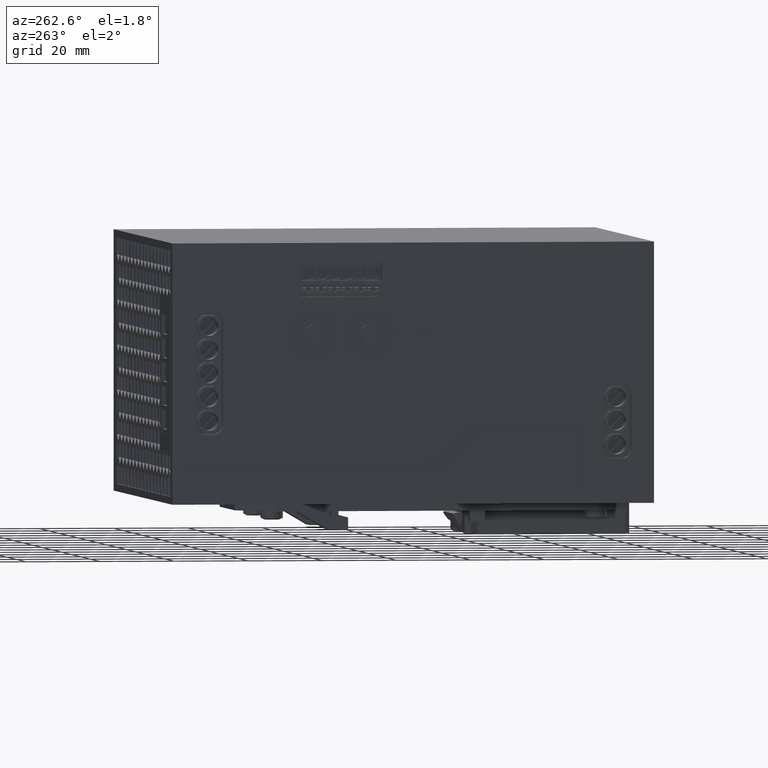
[diagram: clean part render]
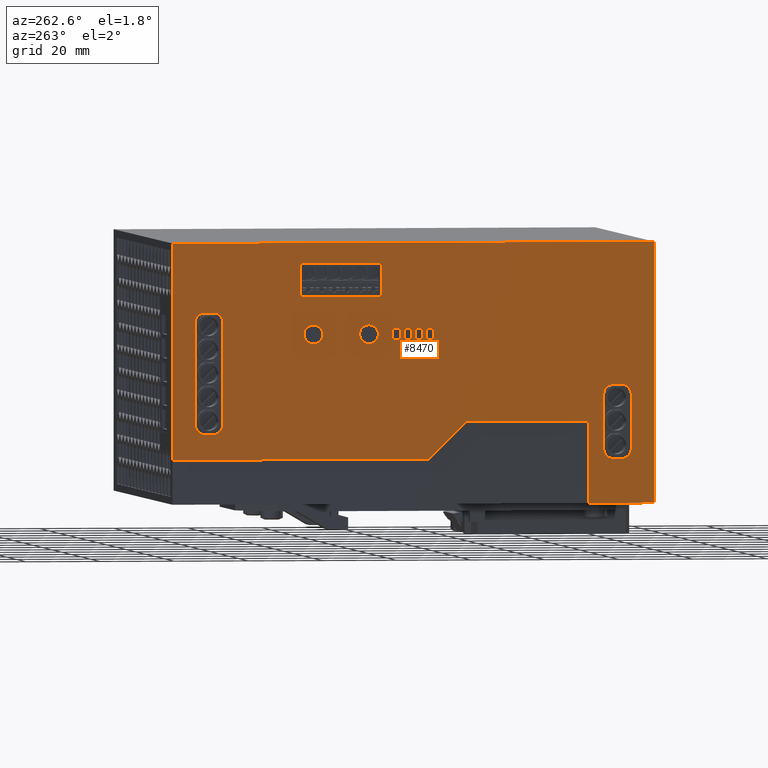
[diagram: same view with one face highlighted and labeled with its STEP entity id]
A machine part, auxiliary view. The second image highlights one B-rep face of the part: STEP entity #8470.
In plain terms, the highlighted planar face has unit normal (-1, 0, 0).
Its self-contained STEP definition (entity closure, byte-faithful):
#100=CARTESIAN_POINT('',(21.9249998753199,122.349999999992,
78.4587186950105));
#110=VERTEX_POINT('',#100);
#280=CARTESIAN_POINT('',(11.9335354708757,122.349999999992,
68.4672542905663));
#290=VERTEX_POINT('',#280);
#320=CARTESIAN_POINT('',(-56.5337188196906,122.349999999992,0.));
#330=DIRECTION('',(0.707106781186547,0.,0.707106781186548));
#340=VECTOR('',#330,1.);
#350=LINE('',#320,#340);
#360=EDGE_CURVE('',#290,#110,#350,.T.);
#1040=CARTESIAN_POINT('',(21.9249998753199,122.349999999992,
111.546849890801));
#1050=VERTEX_POINT('',#1040);
#1170=CARTESIAN_POINT('',(21.9249998753199,122.349999999992,0.));
#1180=DIRECTION('',(0.,0.,1.));
#1190=VECTOR('',#1180,1.);
#1200=LINE('',#1170,#1190);
#1210=EDGE_CURVE('',#110,#1050,#1200,.T.);
#1470=CARTESIAN_POINT('',(0.,122.349999999992,111.546849890801));
#1480=DIRECTION('',(-1.,0.,0.));
#1490=VECTOR('',#1480,1.);
#1500=LINE('',#1470,#1490);
#1510=CARTESIAN_POINT('',(0.,122.349999999992,111.546849890801));
#1520=VERTEX_POINT('',#1510);
#1530=EDGE_CURVE('',#1050,#1520,#1500,.T.);
#1800=CARTESIAN_POINT('',(44.,122.349999999992,60.6468498908015));
#1810=VERTEX_POINT('',#1800);
#1980=CARTESIAN_POINT('',(47.,122.349999999992,60.6468498908015));
#1990=VERTEX_POINT('',#1980);
#2020=CARTESIAN_POINT('',(0.,122.349999999992,60.6468498908015));
#2030=DIRECTION('',(1.,0.,0.));
#2040=VECTOR('',#2030,1.);
#2050=LINE('',#2020,#2040);
#2060=EDGE_CURVE('',#1810,#1990,#2050,.T.);
#2350=CARTESIAN_POINT('',(11.9335354708757,122.349999999992,
-0.853150109198594));
#2360=VERTEX_POINT('',#2350);
#2390=CARTESIAN_POINT('',(11.9335354708757,122.349999999992,0.));
#2400=DIRECTION('',(0.,0.,-1.));
#2410=VECTOR('',#2400,1.);
#2420=LINE('',#2390,#2410);
#2430=EDGE_CURVE('',#290,#2360,#2420,.T.);
#3120=CARTESIAN_POINT('',(47.,122.349999999992,64.6468498908015));
#3130=VERTEX_POINT('',#3120);
#3300=CARTESIAN_POINT('',(44.,122.349999999992,64.6468498908015));
#3310=VERTEX_POINT('',#3300);
#3340=CARTESIAN_POINT('',(0.,122.349999999992,64.6468498908015));
#3350=DIRECTION('',(-1.,0.,0.));
#3360=VECTOR('',#3350,1.);
#3370=LINE('',#3340,#3360);
#3380=EDGE_CURVE('',#3130,#3310,#3370,.T.);
#4840=CARTESIAN_POINT('',(-1.75315,122.349999999992,132.399999890801));
#4850=DIRECTION('',(-0.,1.,0.));
#4860=DIRECTION('',(1.,0.,0.));
#4870=AXIS2_PLACEMENT_3D('',#4840,#4850,#4860);
#4880=PLANE('',#4870);
#4890=CARTESIAN_POINT('',(70.,122.349999999992,0.));
#4900=DIRECTION('',(0.,0.,-1.));
#4910=VECTOR('',#4900,1.);
#4920=LINE('',#4890,#4910);
#4930=CARTESIAN_POINT('',(70.,122.349999999992,129.146849890801));
#4940=VERTEX_POINT('',#4930);
#4950=CARTESIAN_POINT('',(70.,122.349999999992,-0.853150109198594));
#4960=VERTEX_POINT('',#4950);
#4970=EDGE_CURVE('',#4940,#4960,#4920,.T.);
#4980=ORIENTED_EDGE('',*,*,#4970,.T.);
#4990=CARTESIAN_POINT('',(0.,122.349999999992,129.146849890801));
#5000=DIRECTION('',(-1.,0.,0.));
#5010=VECTOR('',#5000,1.);
#5020=LINE('',#4990,#5010);
#5030=CARTESIAN_POINT('',(0.,122.349999999992,129.146849890801));
#5040=VERTEX_POINT('',#5030);
#5050=EDGE_CURVE('',#4940,#5040,#5020,.T.);
#5060=ORIENTED_EDGE('',*,*,#5050,.F.);
#5070=CARTESIAN_POINT('',(0.,122.349999999992,0.));
#5080=DIRECTION('',(0.,0.,-1.));
#5090=VECTOR('',#5080,1.);
#5100=LINE('',#5070,#5090);
#5110=EDGE_CURVE('',#5040,#1520,#5100,.T.);
#5120=ORIENTED_EDGE('',*,*,#5110,.F.);
#5130=ORIENTED_EDGE('',*,*,#1530,.T.);
#5140=ORIENTED_EDGE('',*,*,#1210,.T.);
#5150=ORIENTED_EDGE('',*,*,#360,.T.);
#5160=ORIENTED_EDGE('',*,*,#2430,.F.);
#5170=CARTESIAN_POINT('',(0.,122.349999999992,-0.853150109198594));
#5180=DIRECTION('',(-1.,0.,0.));
#5190=VECTOR('',#5180,1.);
#5200=LINE('',#5170,#5190);
#5210=EDGE_CURVE('',#4960,#2360,#5200,.T.);
#5220=ORIENTED_EDGE('',*,*,#5210,.T.);
#5230=EDGE_LOOP('',(#5220,#5160,#5150,#5140,#5130,#5120,#5060,#4980));
#5240=FACE_OUTER_BOUND('',#5230,.T.);
#5250=CARTESIAN_POINT('',(64.56,122.349999999992,0.));
#5260=DIRECTION('',(0.,0.,-1.));
#5270=VECTOR('',#5260,1.);
#5280=LINE('',#5250,#5270);
#5290=CARTESIAN_POINT('',(64.56,122.349999999992,55.6468498908014));
#5300=VERTEX_POINT('',#5290);
#5310=CARTESIAN_POINT('',(64.56,122.349999999992,33.6468498908014));
#5320=VERTEX_POINT('',#5310);
#5330=EDGE_CURVE('',#5300,#5320,#5280,.T.);
#5340=ORIENTED_EDGE('',*,*,#5330,.F.);
#5350=CARTESIAN_POINT('',(0.,122.349999999992,33.6468498908014));
#5360=DIRECTION('',(-1.,0.,0.));
#5370=VECTOR('',#5360,1.);
#5380=LINE('',#5350,#5370);
#5390=CARTESIAN_POINT('',(55.56,122.349999999992,33.6468498908014));
#5400=VERTEX_POINT('',#5390);
#5410=EDGE_CURVE('',#5320,#5400,#5380,.T.);
#5420=ORIENTED_EDGE('',*,*,#5410,.F.);
#5430=CARTESIAN_POINT('',(55.56,122.349999999992,0.));
#5440=DIRECTION('',(0.,0.,1.));
#5450=VECTOR('',#5440,1.);
#5460=LINE('',#5430,#5450);
#5470=CARTESIAN_POINT('',(55.56,122.349999999992,55.6468498908014));
#5480=VERTEX_POINT('',#5470);
#5490=EDGE_CURVE('',#5400,#5480,#5460,.T.);
#5500=ORIENTED_EDGE('',*,*,#5490,.F.);
#5510=CARTESIAN_POINT('',(0.,122.349999999992,55.6468498908014));
#5520=DIRECTION('',(1.,0.,0.));
#5530=VECTOR('',#5520,1.);
#5540=LINE('',#5510,#5530);
#5550=EDGE_CURVE('',#5480,#5300,#5540,.T.);
#5560=ORIENTED_EDGE('',*,*,#5550,.F.);
#5570=EDGE_LOOP('',(#5560,#5500,#5420,#5340));
#5580=FACE_BOUND('',#5570,.T.);
#5590=CARTESIAN_POINT('',(21.2914645291246,122.349999999992,
7.80038500000003));
#5600=DIRECTION('',(0.,1.,0.));
#5610=DIRECTION('',(-1.,0.,0.));
#5620=AXIS2_PLACEMENT_3D('',#5590,#5600,#5610);
#5630=CIRCLE('',#5620,2.50000000000003);
#5640=CARTESIAN_POINT('',(21.2914645291246,122.349999999992,
5.30038500000001));
#5650=VERTEX_POINT('',#5640);
#5660=CARTESIAN_POINT('',(18.7914645291246,122.349999999992,7.800385));
#5670=VERTEX_POINT('',#5660);
#5680=EDGE_CURVE('',#5650,#5670,#5630,.T.);
#5690=ORIENTED_EDGE('',*,*,#5680,.F.);
#5700=CARTESIAN_POINT('',(18.7914645291246,122.349999999992,0.));
#5710=DIRECTION('',(0.,0.,1.));
#5720=VECTOR('',#5710,1.);
#5730=LINE('',#5700,#5720);
#5740=CARTESIAN_POINT('',(18.7914645291246,122.349999999992,10.200385));
#5750=VERTEX_POINT('',#5740);
#5760=EDGE_CURVE('',#5670,#5750,#5730,.T.);
#5770=ORIENTED_EDGE('',*,*,#5760,.F.);
#5780=CARTESIAN_POINT('',(21.2914645291247,122.349999999992,10.200385));
#5790=DIRECTION('',(0.,1.,0.));
#5800=DIRECTION('',(-1.,0.,0.));
#5810=AXIS2_PLACEMENT_3D('',#5780,#5790,#5800);
#5820=CIRCLE('',#5810,2.50000000000012);
#5830=CARTESIAN_POINT('',(21.2914645291246,122.349999999992,
12.7003850000001));
#5840=VERTEX_POINT('',#5830);
#5850=EDGE_CURVE('',#5750,#5840,#5820,.T.);
#5860=ORIENTED_EDGE('',*,*,#5850,.F.);
#5870=CARTESIAN_POINT('',(0.,122.349999999992,12.700385));
#5880=DIRECTION('',(1.,0.,0.));
#5890=VECTOR('',#5880,1.);
#5900=LINE('',#5870,#5890);
#5910=CARTESIAN_POINT('',(48.8414645291243,122.349999999992,12.700385));
#5920=VERTEX_POINT('',#5910);
#5930=EDGE_CURVE('',#5840,#5920,#5900,.T.);
#5940=ORIENTED_EDGE('',*,*,#5930,.F.);
#5950=CARTESIAN_POINT('',(48.8414645291243,122.349999999992,10.200385));
#5960=DIRECTION('',(0.,-1.,0.));
#5970=DIRECTION('',(1.,0.,0.));
#5980=AXIS2_PLACEMENT_3D('',#5950,#5960,#5970);
#5990=CIRCLE('',#5980,2.50000000000005);
#6000=CARTESIAN_POINT('',(51.3414645291243,122.349999999992,10.200385));
#6010=VERTEX_POINT('',#6000);
#6020=EDGE_CURVE('',#6010,#5920,#5990,.T.);
#6030=ORIENTED_EDGE('',*,*,#6020,.T.);
#6040=CARTESIAN_POINT('',(51.3414645291243,122.349999999992,0.));
#6050=DIRECTION('',(0.,0.,-1.));
#6060=VECTOR('',#6050,1.);
#6070=LINE('',#6040,#6060);
#6080=CARTESIAN_POINT('',(51.3414645291243,122.349999999992,
7.80038500000001));
#6090=VERTEX_POINT('',#6080);
#6100=EDGE_CURVE('',#6010,#6090,#6070,.T.);
#6110=ORIENTED_EDGE('',*,*,#6100,.F.);
#6120=CARTESIAN_POINT('',(48.8414645291243,122.349999999992,
7.80038499999996));
#6130=DIRECTION('',(0.,1.,0.));
#6140=DIRECTION('',(-1.,0.,0.));
#6150=AXIS2_PLACEMENT_3D('',#6120,#6130,#6140);
#6160=CIRCLE('',#6150,2.50000000000003);
#6170=CARTESIAN_POINT('',(48.8414645291243,122.349999999992,
5.30038500000001));
#6180=VERTEX_POINT('',#6170);
#6190=EDGE_CURVE('',#6090,#6180,#6160,.T.);
#6200=ORIENTED_EDGE('',*,*,#6190,.F.);
#6210=CARTESIAN_POINT('',(0.,122.349999999992,5.30038500000001));
#6220=DIRECTION('',(-1.,0.,0.));
#6230=VECTOR('',#6220,1.);
#6240=LINE('',#6210,#6230);
#6250=EDGE_CURVE('',#6180,#5650,#6240,.T.);
#6260=ORIENTED_EDGE('',*,*,#6250,.F.);
#6270=EDGE_LOOP('',(#6260,#6200,#6110,#6030,#5940,#5860,#5770,#5690));
#6280=FACE_BOUND('',#6270,.T.);
#6290=CARTESIAN_POINT('',(45.5,122.349999999992,52.1468498908015));
#6300=DIRECTION('',(0.,-1.,0.));
#6310=DIRECTION('',(1.,0.,0.));
#6320=AXIS2_PLACEMENT_3D('',#6290,#6300,#6310);
#6330=CIRCLE('',#6320,2.49999999999999);
#6340=CARTESIAN_POINT('',(43.,122.349999999992,52.1468498908015));
#6350=VERTEX_POINT('',#6340);
#6360=CARTESIAN_POINT('',(48.,122.349999999992,52.1468498908015));
#6370=VERTEX_POINT('',#6360);
#6380=EDGE_CURVE('',#6350,#6370,#6330,.T.);
#6390=ORIENTED_EDGE('',*,*,#6380,.T.);
#6400=EDGE_CURVE('',#6370,#6350,#6330,.T.);
#6410=ORIENTED_EDGE('',*,*,#6400,.T.);
#6420=EDGE_LOOP('',(#6410,#6390));
#6430=FACE_BOUND('',#6420,.T.);
#6440=ORIENTED_EDGE('',*,*,#2060,.F.);
#6450=CARTESIAN_POINT('',(47.,122.349999999992,0.));
#6460=DIRECTION('',(0.,0.,-1.));
#6470=VECTOR('',#6460,1.);
#6480=LINE('',#6450,#6470);
#6490=CARTESIAN_POINT('',(47.,122.349999999992,58.6468498908015));
#6500=VERTEX_POINT('',#6490);
#6510=EDGE_CURVE('',#1990,#6500,#6480,.T.);
#6520=ORIENTED_EDGE('',*,*,#6510,.F.);
#6530=CARTESIAN_POINT('',(0.,122.349999999992,58.6468498908015));
#6540=DIRECTION('',(-1.,0.,0.));
#6550=VECTOR('',#6540,1.);
#6560=LINE('',#6530,#6550);
#6570=CARTESIAN_POINT('',(44.,122.349999999992,58.6468498908015));
#6580=VERTEX_POINT('',#6570);
#6590=EDGE_CURVE('',#6500,#6580,#6560,.T.);
#6600=ORIENTED_EDGE('',*,*,#6590,.F.);
#6610=CARTESIAN_POINT('',(44.,122.349999999992,0.));
#6620=DIRECTION('',(0.,0.,1.));
#6630=VECTOR('',#6620,1.);
#6640=LINE('',#6610,#6630);
#6650=EDGE_CURVE('',#6580,#1810,#6640,.T.);
#6660=ORIENTED_EDGE('',*,*,#6650,.F.);
#6670=EDGE_LOOP('',(#6660,#6600,#6520,#6440));
#6680=FACE_BOUND('',#6670,.T.);
#6690=CARTESIAN_POINT('',(0.,122.349999999992,63.6468498908015));
#6700=DIRECTION('',(1.,0.,0.));
#6710=VECTOR('',#6700,1.);
#6720=LINE('',#6690,#6710);
#6730=CARTESIAN_POINT('',(44.,122.349999999992,63.6468498908015));
#6740=VERTEX_POINT('',#6730);
#6750=CARTESIAN_POINT('',(47.,122.349999999992,63.6468498908015));
#6760=VERTEX_POINT('',#6750);
#6770=EDGE_CURVE('',#6740,#6760,#6720,.T.);
#6780=ORIENTED_EDGE('',*,*,#6770,.F.);
#6790=CARTESIAN_POINT('',(47.,122.349999999992,0.));
#6800=DIRECTION('',(0.,0.,-1.));
#6810=VECTOR('',#6800,1.);
#6820=LINE('',#6790,#6810);
#6830=CARTESIAN_POINT('',(47.,122.349999999992,61.6468498908015));
#6840=VERTEX_POINT('',#6830);
#6850=EDGE_CURVE('',#6760,#6840,#6820,.T.);
#6860=ORIENTED_EDGE('',*,*,#6850,.F.);
#6870=CARTESIAN_POINT('',(0.,122.349999999992,61.6468498908015));
#6880=DIRECTION('',(-1.,0.,0.));
#6890=VECTOR('',#6880,1.);
#6900=LINE('',#6870,#6890);
#6910=CARTESIAN_POINT('',(44.,122.349999999992,61.6468498908015));
#6920=VERTEX_POINT('',#6910);
#6930=EDGE_CURVE('',#6840,#6920,#6900,.T.);
#6940=ORIENTED_EDGE('',*,*,#6930,.F.);
#6950=CARTESIAN_POINT('',(44.,122.349999999992,0.));
#6960=DIRECTION('',(0.,0.,1.));
#6970=VECTOR('',#6960,1.);
#6980=LINE('',#6950,#6970);
#6990=EDGE_CURVE('',#6920,#6740,#6980,.T.);
#7000=ORIENTED_EDGE('',*,*,#6990,.F.);
#7010=EDGE_LOOP('',(#7000,#6940,#6860,#6780));
#7020=FACE_BOUND('',#7010,.T.);
#7030=CARTESIAN_POINT('',(45.5,122.349999999992,37.1468498908015));
#7040=DIRECTION('',(0.,-1.,0.));
#7050=DIRECTION('',(1.,0.,0.));
#7060=AXIS2_PLACEMENT_3D('',#7030,#7040,#7050);
#7070=CIRCLE('',#7060,2.49999999999999);
#7080=CARTESIAN_POINT('',(48.,122.349999999992,37.1468498908015));
#7090=VERTEX_POINT('',#7080);
#7100=CARTESIAN_POINT('',(43.,122.349999999992,37.1468498908015));
#7110=VERTEX_POINT('',#7100);
#7120=EDGE_CURVE('',#7090,#7110,#7070,.T.);
#7130=ORIENTED_EDGE('',*,*,#7120,.T.);
#7140=EDGE_CURVE('',#7110,#7090,#7070,.T.);
#7150=ORIENTED_EDGE('',*,*,#7140,.T.);
#7160=EDGE_LOOP('',(#7150,#7130));
#7170=FACE_BOUND('',#7160,.T.);
#7180=CARTESIAN_POINT('',(47.,122.349999999992,0.));
#7190=DIRECTION('',(0.,0.,-1.));
#7200=VECTOR('',#7190,1.);
#7210=LINE('',#7180,#7200);
#7220=CARTESIAN_POINT('',(47.,122.349999999992,69.6468498908015));
#7230=VERTEX_POINT('',#7220);
#7240=CARTESIAN_POINT('',(47.,122.349999999992,67.6468498908015));
#7250=VERTEX_POINT('',#7240);
#7260=EDGE_CURVE('',#7230,#7250,#7210,.T.);
#7270=ORIENTED_EDGE('',*,*,#7260,.F.);
#7280=CARTESIAN_POINT('',(0.,122.349999999992,67.6468498908015));
#7290=DIRECTION('',(-1.,0.,0.));
#7300=VECTOR('',#7290,1.);
#7310=LINE('',#7280,#7300);
#7320=CARTESIAN_POINT('',(44.,122.349999999992,67.6468498908015));
#7330=VERTEX_POINT('',#7320);
#7340=EDGE_CURVE('',#7250,#7330,#7310,.T.);
#7350=ORIENTED_EDGE('',*,*,#7340,.F.);
#7360=CARTESIAN_POINT('',(44.,122.349999999992,0.));
#7370=DIRECTION('',(0.,0.,1.));
#7380=VECTOR('',#7370,1.);
#7390=LINE('',#7360,#7380);
#7400=CARTESIAN_POINT('',(44.,122.349999999992,69.6468498908015));
#7410=VERTEX_POINT('',#7400);
#7420=EDGE_CURVE('',#7330,#7410,#7390,.T.);
#7430=ORIENTED_EDGE('',*,*,#7420,.F.);
#7440=CARTESIAN_POINT('',(0.,122.349999999992,69.6468498908015));
#7450=DIRECTION('',(1.,0.,0.));
#7460=VECTOR('',#7450,1.);
#7470=LINE('',#7440,#7460);
#7480=EDGE_CURVE('',#7410,#7230,#7470,.T.);
#7490=ORIENTED_EDGE('',*,*,#7480,.F.);
#7500=EDGE_LOOP('',(#7490,#7430,#7350,#7270));
#7510=FACE_BOUND('',#7500,.T.);
#7520=CARTESIAN_POINT('',(29.2345989800038,122.349999999992,
120.493314781603));
#7530=DIRECTION('',(0.,-1.,0.));
#7540=DIRECTION('',(-1.,0.,0.));
#7550=AXIS2_PLACEMENT_3D('',#7520,#7530,#7540);
#7560=CIRCLE('',#7550,2.49999999999996);
#7570=CARTESIAN_POINT('',(31.7345989800037,122.349999999992,
120.493314781603));
#7580=VERTEX_POINT('',#7570);
#7590=CARTESIAN_POINT('',(29.2345989800037,122.349999999992,
122.993314781603));
#7600=VERTEX_POINT('',#7590);
#7610=EDGE_CURVE('',#7580,#7600,#7560,.T.);
#7620=ORIENTED_EDGE('',*,*,#7610,.T.);
#7630=CARTESIAN_POINT('',(31.7345989800037,122.349999999992,0.));
#7640=DIRECTION('',(0.,0.,-1.));
#7650=VECTOR('',#7640,1.);
#7660=LINE('',#7630,#7650);
#7670=CARTESIAN_POINT('',(31.7345989800037,122.349999999992,
118.093314781603));
#7680=VERTEX_POINT('',#7670);
#7690=EDGE_CURVE('',#7580,#7680,#7660,.T.);
#7700=ORIENTED_EDGE('',*,*,#7690,.F.);
#7710=CARTESIAN_POINT('',(29.2345989800037,122.349999999992,
118.093314781603));
#7720=DIRECTION('',(0.,-1.,0.));
#7730=DIRECTION('',(-1.,0.,0.));
#7740=AXIS2_PLACEMENT_3D('',#7710,#7720,#7730);
#7750=CIRCLE('',#7740,2.50000000000003);
#7760=CARTESIAN_POINT('',(29.2345989800037,122.349999999992,
115.593314781603));
#7770=VERTEX_POINT('',#7760);
#7780=EDGE_CURVE('',#7770,#7680,#7750,.T.);
#7790=ORIENTED_EDGE('',*,*,#7780,.T.);
#7800=CARTESIAN_POINT('',(0.,122.349999999992,115.593314781603));
#7810=DIRECTION('',(-1.,0.,0.));
#7820=VECTOR('',#7810,1.);
#7830=LINE('',#7800,#7820);
#7840=CARTESIAN_POINT('',(14.4335354708757,122.349999999992,
115.593314781603));
#7850=VERTEX_POINT('',#7840);
#7860=EDGE_CURVE('',#7770,#7850,#7830,.T.);
#7870=ORIENTED_EDGE('',*,*,#7860,.F.);
#7880=CARTESIAN_POINT('',(14.4335354708757,122.349999999992,
118.093314781603));
#7890=DIRECTION('',(0.,-1.,0.));
#7900=DIRECTION('',(1.,0.,0.));
#7910=AXIS2_PLACEMENT_3D('',#7880,#7890,#7900);
#7920=CIRCLE('',#7910,2.50000000000002);
#7930=CARTESIAN_POINT('',(11.9335354708757,122.349999999992,
118.093314781603));
#7940=VERTEX_POINT('',#7930);
#7950=EDGE_CURVE('',#7940,#7850,#7920,.T.);
#7960=ORIENTED_EDGE('',*,*,#7950,.T.);
#7970=CARTESIAN_POINT('',(11.9335354708757,122.349999999992,0.));
#7980=DIRECTION('',(0.,0.,1.));
#7990=VECTOR('',#7980,1.);
#8000=LINE('',#7970,#7990);
#8010=CARTESIAN_POINT('',(11.9335354708757,122.349999999992,
120.493314781603));
#8020=VERTEX_POINT('',#8010);
#8030=EDGE_CURVE('',#7940,#8020,#8000,.T.);
#8040=ORIENTED_EDGE('',*,*,#8030,.F.);
#8050=CARTESIAN_POINT('',(14.4335354708756,122.349999999992,
120.493314781603));
#8060=DIRECTION('',(0.,1.,0.));
#8070=DIRECTION('',(-1.,0.,0.));
#8080=AXIS2_PLACEMENT_3D('',#8050,#8060,#8070);
#8090=CIRCLE('',#8080,2.49999999999998);
#8100=CARTESIAN_POINT('',(14.4335354708757,122.349999999992,
122.993314781603));
#8110=VERTEX_POINT('',#8100);
#8120=EDGE_CURVE('',#8020,#8110,#8090,.T.);
#8130=ORIENTED_EDGE('',*,*,#8120,.F.);
#8140=CARTESIAN_POINT('',(0.,122.349999999992,122.993314781603));
#8150=DIRECTION('',(1.,0.,0.));
#8160=VECTOR('',#8150,1.);
#8170=LINE('',#8140,#8160);
#8180=EDGE_CURVE('',#8110,#7600,#8170,.T.);
#8190=ORIENTED_EDGE('',*,*,#8180,.F.);
#8200=EDGE_LOOP('',(#8190,#8130,#8040,#7960,#7870,#7790,#7700,#7620));
#8210=FACE_BOUND('',#8200,.T.);
#8220=ORIENTED_EDGE('',*,*,#3380,.F.);
#8230=CARTESIAN_POINT('',(44.,122.349999999992,0.));
#8240=DIRECTION('',(0.,0.,1.));
#8250=VECTOR('',#8240,1.);
#8260=LINE('',#8230,#8250);
#8270=CARTESIAN_POINT('',(44.,122.349999999992,66.6468498908015));
#8280=VERTEX_POINT('',#8270);
#8290=EDGE_CURVE('',#3310,#8280,#8260,.T.);
#8300=ORIENTED_EDGE('',*,*,#8290,.F.);
#8310=CARTESIAN_POINT('',(0.,122.349999999992,66.6468498908015));
#8320=DIRECTION('',(1.,0.,0.));
#8330=VECTOR('',#8320,1.);
#8340=LINE('',#8310,#8330);
#8350=CARTESIAN_POINT('',(47.,122.349999999992,66.6468498908015));
#8360=VERTEX_POINT('',#8350);
#8370=EDGE_CURVE('',#8280,#8360,#8340,.T.);
#8380=ORIENTED_EDGE('',*,*,#8370,.F.);
#8390=CARTESIAN_POINT('',(47.,122.349999999992,0.));
#8400=DIRECTION('',(0.,0.,-1.));
#8410=VECTOR('',#8400,1.);
#8420=LINE('',#8390,#8410);
#8430=EDGE_CURVE('',#8360,#3130,#8420,.T.);
#8440=ORIENTED_EDGE('',*,*,#8430,.F.);
#8450=EDGE_LOOP('',(#8440,#8380,#8300,#8220));
#8460=FACE_BOUND('',#8450,.T.);
#8470=ADVANCED_FACE('',(#5240,#5580,#6280,#6430,#6680,#7020,#7170,#7510,
#8210,#8460),#4880,.T.);